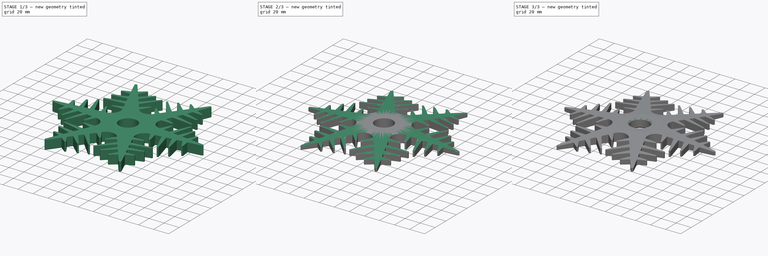
[diagram: build sequence overview — one tinted view per stage of 3, left to right]
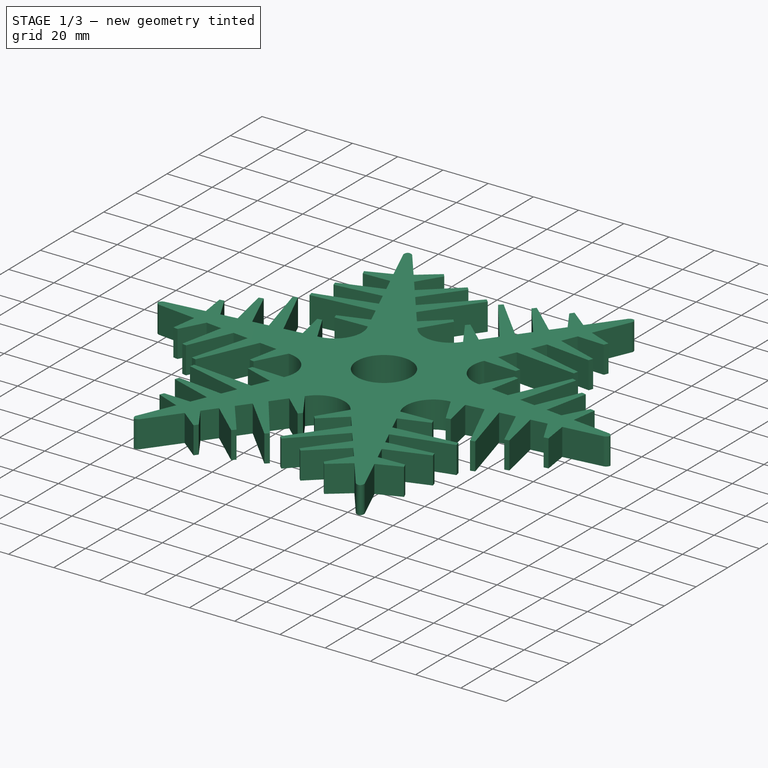
[diagram: stage 1 of 3 — iso view after this stage's code; geometry added in this stage tinted green]
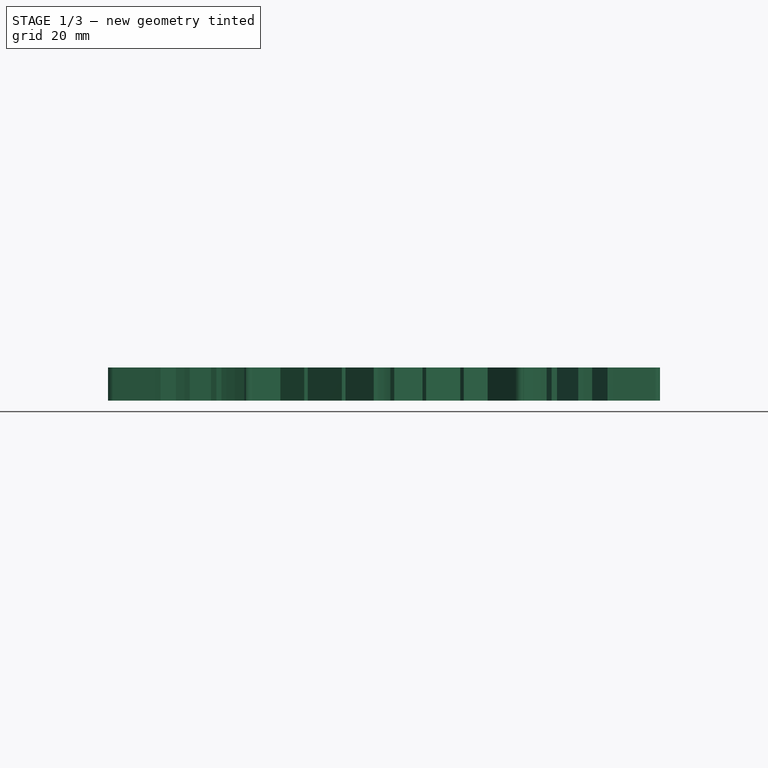
[diagram: stage 1 of 3 — front view after this stage's code; geometry added in this stage tinted green]
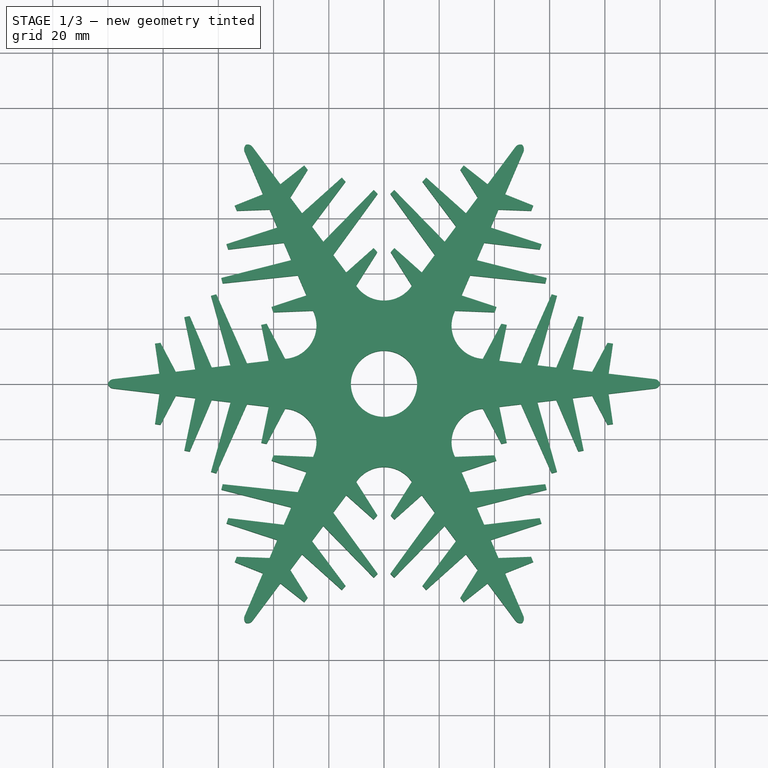
[diagram: stage 1 of 3 — top view after this stage's code; geometry added in this stage tinted green]
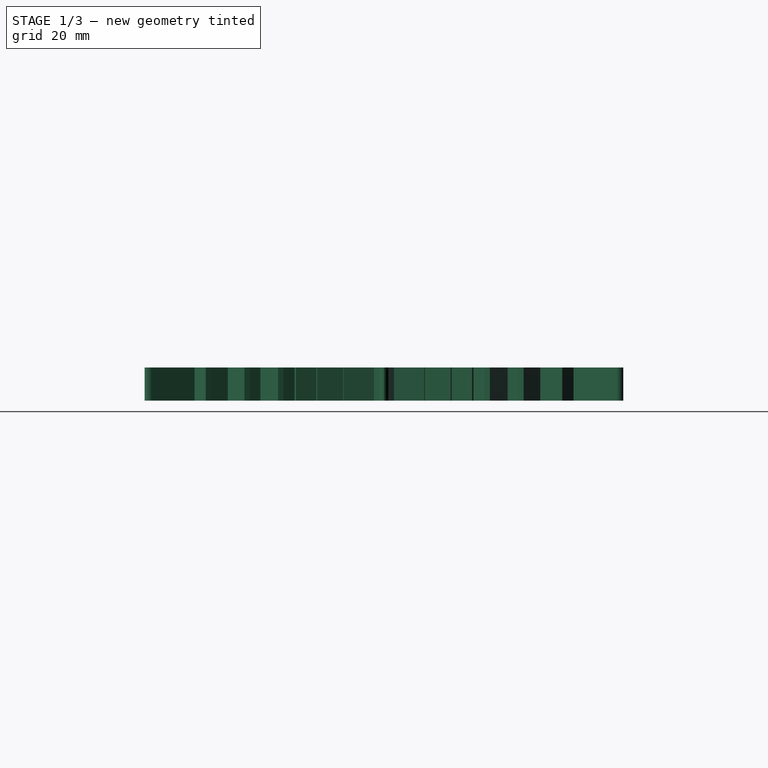
[diagram: stage 1 of 3 — right view after this stage's code; geometry added in this stage tinted green]
FCSTD DOCUMENT  (FreeCAD 0.17R13541 (Git))
Label: SkiBaskets3
License: All rights reserved
LicenseURL: http://en.wikipedia.org/wiki/All_rights_reserved
objects: Sketcher::SketchObject×2, PartDesign::Chamfer×2, PartDesign::Pad×1, PartDesign::Mirrored×1, PartDesign::PolarPattern×1, PartDesign::MultiTransform×1, PartDesign::Groove×1, PartDesign::Body×1
note: 12 computed .brp shape members not serialized (recipe doc carries the construction recipe); baked Part::Feature solids carry a one-line shape summary decoded from their .brp

FEATURE [Sketcher::SketchObject] Sketch
  MapMode = 5
  Support = -> [XY_Plane]
  sketch-geometry (26):
    g0: LineSegment [constr] StartX=0 StartY=0 StartZ=0 EndX=60.6218 EndY=35 EndZ=0
    g1: LineSegment [constr] StartX=60.6218 StartY=35 StartZ=0 EndX=100 EndY=0 EndZ=0
    g2: LineSegment StartX=42.4993 StartY=21.7373 StartZ=0 EndX=44.4578 EndY=21.3319 EndZ=0
    g3: LineSegment StartX=44.4578 StartY=21.3319 StartZ=0 EndX=41.7642 EndY=8.31776 EndZ=0
    g4: LineSegment StartX=41.7642 StartY=8.31776 StartZ=0 EndX=49.6196 EndY=7.39005 EndZ=0
    g5: LineSegment StartX=49.6196 StartY=7.39005 StartZ=0 EndX=60.7407 EndY=32.4098 EndZ=0
    g6: LineSegment StartX=60.7407 StartY=32.4098 StartZ=0 EndX=62.6659 EndY=31.8679 EndZ=0
    g7: LineSegment StartX=62.6659 StartY=31.8679 StartZ=0 EndX=55.5782 EndY=6.68634 EndZ=0
    g8: LineSegment StartX=55.5782 StartY=6.68634 StartZ=0 EndX=62.3909 EndY=5.88177 EndZ=0
    g9: LineSegment StartX=62.3909 StartY=5.88177 StartZ=0 EndX=70.3733 EndY=24.5356 EndZ=0
    g10: LineSegment StartX=70.3733 StartY=24.5356 StartZ=0 EndX=72.3306 EndY=24.1243 EndZ=0
    g11: LineSegment StartX=72.3306 StartY=24.1243 StartZ=0 EndX=68.3495 EndY=5.17806 EndZ=0
    g12: LineSegment StartX=68.3495 StartY=5.17806 StartZ=0 EndX=75.4093 EndY=4.3443 EndZ=0
    g13: LineSegment StartX=75.4093 StartY=4.3443 StartZ=0 EndX=80.9633 EndY=14.8235 EndZ=0
    g14: LineSegment StartX=80.9633 StartY=14.8235 StartZ=0 EndX=82.9428 EndY=14.5374 EndZ=0
    g15: LineSegment StartX=82.9428 StartY=14.5374 StartZ=0 EndX=81.3679 EndY=3.64059 EndZ=0
    g16: LineSegment StartX=81.3679 StartY=3.64059 StartZ=0 EndX=98.1314 EndY=1.66083 EndZ=0
    g17: LineSegment StartX=100 StartY=0 StartZ=0 EndX=12 EndY=0 EndZ=0
    g18: LineSegment [constr] StartX=19.0526 StartY=11 StartZ=0 EndX=98.1314 EndY=1.66083 EndZ=0
    g19: ArcOfCircle CenterX=0 CenterY=0 CenterZ=0 NormalX=0 NormalY=0 NormalZ=1 AngleXU=0 Radius=12 StartAngle=0 EndAngle=1.5708
    g20: ArcOfCircle CenterX=0 CenterY=0 CenterZ=0 NormalX=0 NormalY=0 NormalZ=1 AngleXU=0 Radius=22 StartAngle=0.523599 EndAngle=1.5708
    g21: LineSegment StartX=0 StartY=12 StartZ=0 EndX=0 EndY=22 EndZ=0
    g22: LineSegment StartX=35.8056 StartY=9.02147 StartZ=0 EndX=42.4993 EndY=21.7373 EndZ=0
    g23: LineSegment StartX=19.0526 StartY=11 StartZ=0 EndX=26.0933 EndY=15.065 EndZ=0
    g24: ArcOfCircle CenterX=36.6069 CenterY=21.135 CenterZ=0 NormalX=0 NormalY=0 NormalZ=1 AngleXU=0 Radius=12.14 StartAngle=3.66519 EndAngle=4.64634
    g25: ArcOfCircle CenterX=97.8711 CenterY=-0.513639 CenterZ=0 NormalX=0 NormalY=0 NormalZ=1 AngleXU=0 Radius=2.19 StartAngle=0.236744 EndAngle=1.45165
  constraints (80):
    c: Coincident(g0,g-1)
    c: DistanceX(g-1,g1) = 100
    c: Angle(g-1,g0) = 0.523599
    c: Coincident(g1,g0)
    c: Distance(g0) = 70
    c: Coincident(g3,g2)
    c: Coincident(g4,g3)
    c: Coincident(g5,g4)
    c: Coincident(g6,g5)
    c: Coincident(g7,g6)
    c: Coincident(g8,g7)
    c: Coincident(g10,g9)
    c: Coincident(g11,g10)
    c: Coincident(g12,g11)
    c: Coincident(g13,g12)
    c: Coincident(g14,g13)
    c: Coincident(g15,g14)
    c: Coincident(g16,g15)
    c: Coincident(g18,g16)
    c: PointOnObject(g16,g1)
    c: PointOnObject(g15,g18)
    c: PointOnObject(g12,g18)
    c: PointOnObject(g11,g18)
    c: PointOnObject(g8,g18)
    c: Coincident(g9,g8)
    c: PointOnObject(g7,g18)
    c: PointOnObject(g4,g18)
    c: PointOnObject(g3,g18)
    c: PointOnObject(g22,g18)
    c: PointOnObject(g20,g18)
    c: Coincident(g1,g17)
    c: Horizontal(g17)
    c: PointOnObject(g1,g-1)
    c: Coincident(g19,g-1)
    c: PointOnObject(g19,g-2)
    c: PointOnObject(g19,g-1)
    c: Coincident(g20,g-1)
    c: PointOnObject(g20,g-2)
    c: Coincident(g21,g19)
    c: Coincident(g21,g20)
    c: Radius(g19) = 12
    c: Distance(g21) = 10
    c: Distance(g14) = 2
    c: Perpendicular(g15,g14)
    c: Perpendicular(g10,g11)
    c: Distance(g10) = 2
    c: Perpendicular(g6,g7)
    c: Distance(g6) = 2
    c: Perpendicular(g3,g2)
    c: Distance(g2) = 2
    c: Distance(g22,g3) = 6
    c: Distance(g4,g7) = 6
    c: Distance(g8,g11) = 6
    c: Distance(g12,g15) = 6
    c: PointOnObject(g20,g0)
    c: Coincident(g22,g2)
    c: Coincident(g17,g19)
    c: Distance(g22) = 14.37
    c: Distance(g3) = 13.29
    c: Distance(g5) = 27.38
    c: Distance(g7) = 26.16
    c: Distance(g9) = 20.29
    c: Distance(g11) = 19.36
    c: Distance(g13) = 11.86
    c: Distance(g15) = 11.01
    c: Distance(g16) = 16.88
    c: PointOnObject(g18,g0)
    c: Distance(g4) = 7.91
    c: Distance(g8) = 6.86
    c: PointOnObject(g23,g0)
    c: PointOnObject(g24,g0)
    c: Coincident(g24,g23)
    c: Coincident(g24,g22)
    c: Coincident(g23,g18)
    c: Distance(g23) = 8.13
    c: Radius(g24) = 12.14
    c: Distance(g16,g1) = 2.5
    c: Coincident(g25,g1)
    c: Coincident(g25,g16)
    c: Radius(g25) = 2.19
FEATURE [Sketcher::SketchObject] Sketch001
  MapMode = 5
  Placement = pos=(0,0,0) rot=(1,0,0;1.5708rad)
  sketch-geometry (3):
    g0: LineSegment StartX=23 StartY=12 StartZ=0 EndX=103 EndY=12 EndZ=0
    g1: LineSegment StartX=103 StartY=12 StartZ=0 EndX=103 EndY=4 EndZ=0
    g2: LineSegment StartX=103 StartY=4 StartZ=0 EndX=23 EndY=12 EndZ=0
  constraints (9):
    c: Horizontal(g0)
    c: Coincident(g1,g0)
    c: Vertical(g1)
    c: Coincident(g2,g1)
    c: Coincident(g2,g0)
    c: DistanceX(g0) = 23
    c: DistanceY(g0) = 12
    c: Distance(g0) = 80
    c: Distance(g1) = 8
FEATURE [PartDesign::Pad] Pad
  Length = 12
  Length2 = 100
  Profile = -> Sketch
  Type = 0
FEATURE [PartDesign::Mirrored] Mirrored
  MirrorPlane = -> Sketch [H_Axis]
FEATURE [PartDesign::PolarPattern] PolarPattern
  Angle = 360
  Axis = -> Sketch [N_Axis]
  Occurrences = 6
FEATURE [PartDesign::MultiTransform] MultiTransform
  BaseFeature = -> Pad
  Originals = -> [Pad]
  Transformations = -> [Mirrored,PolarPattern]
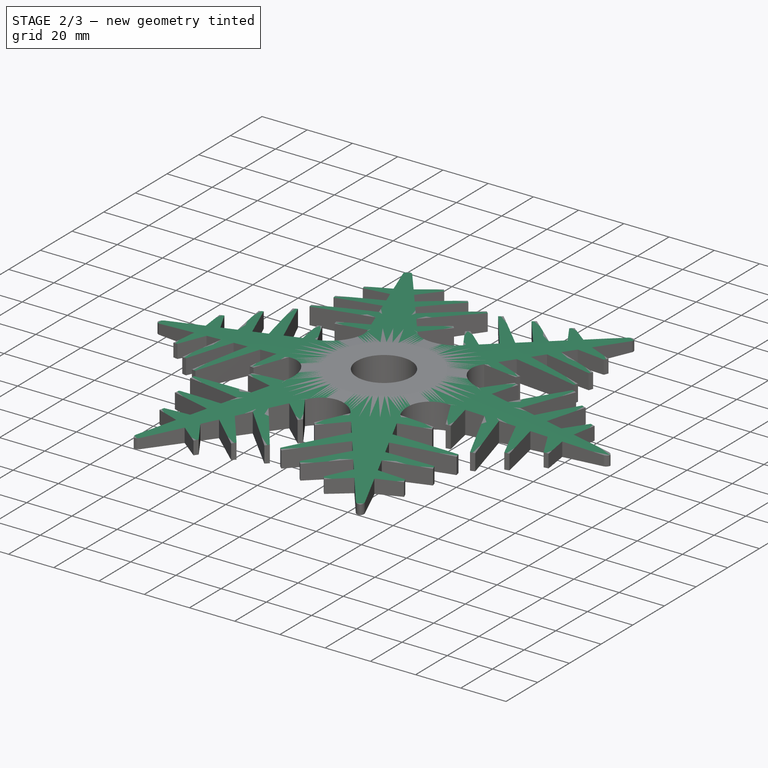
[diagram: stage 2 of 3 — iso view after this stage's code; geometry added in this stage tinted green]
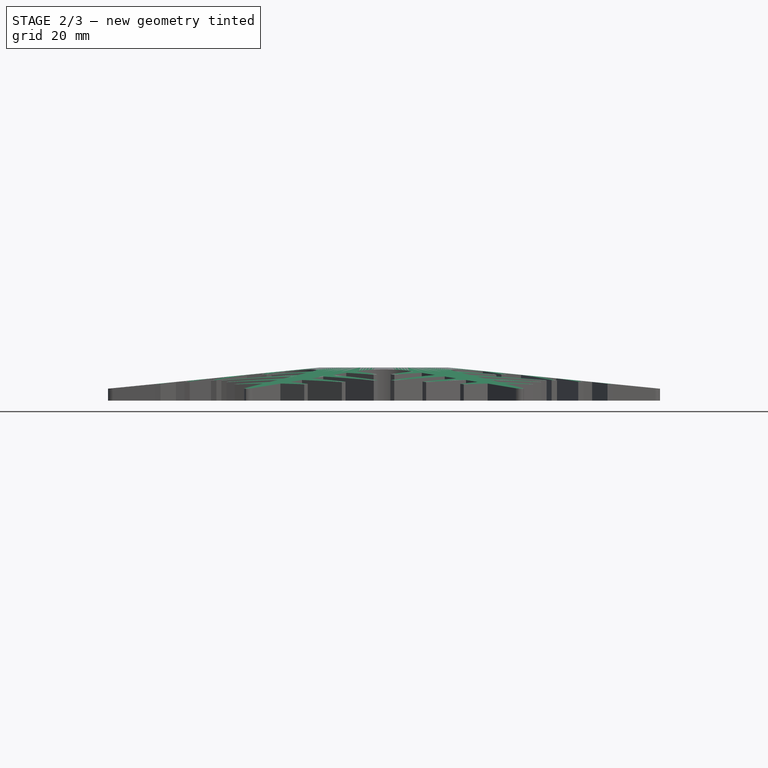
[diagram: stage 2 of 3 — front view after this stage's code; geometry added in this stage tinted green]
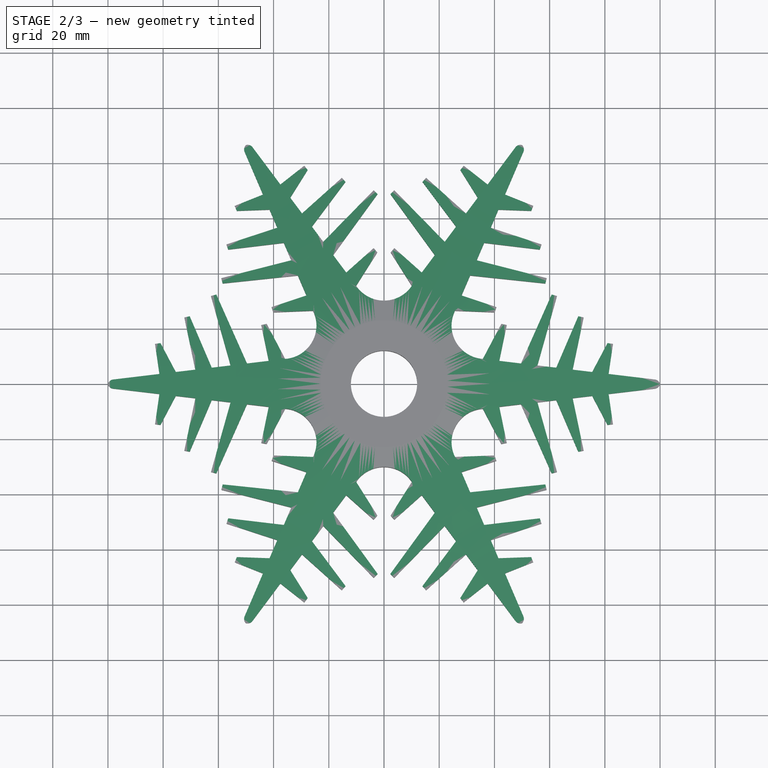
[diagram: stage 2 of 3 — top view after this stage's code; geometry added in this stage tinted green]
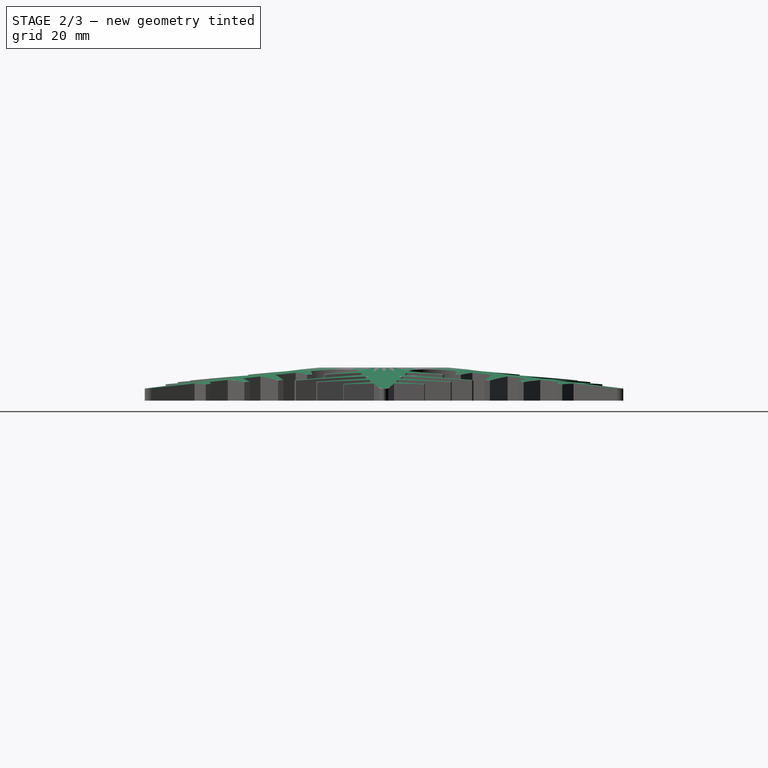
[diagram: stage 2 of 3 — right view after this stage's code; geometry added in this stage tinted green]
FEATURE [PartDesign::Groove] Groove
  Angle = 360
  Axis = (0,0,1)
  Base = (0,0,0)
  BaseFeature = -> MultiTransform
  Profile = -> Sketch001
  ReferenceAxis = -> Z_Axis
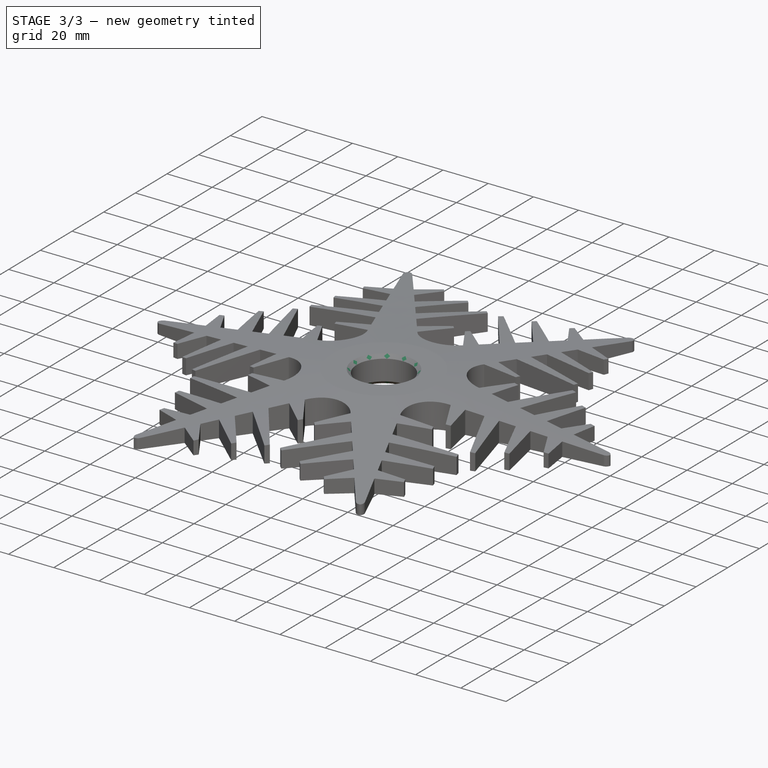
[diagram: stage 3 of 3 — iso view after this stage's code; geometry added in this stage tinted green]
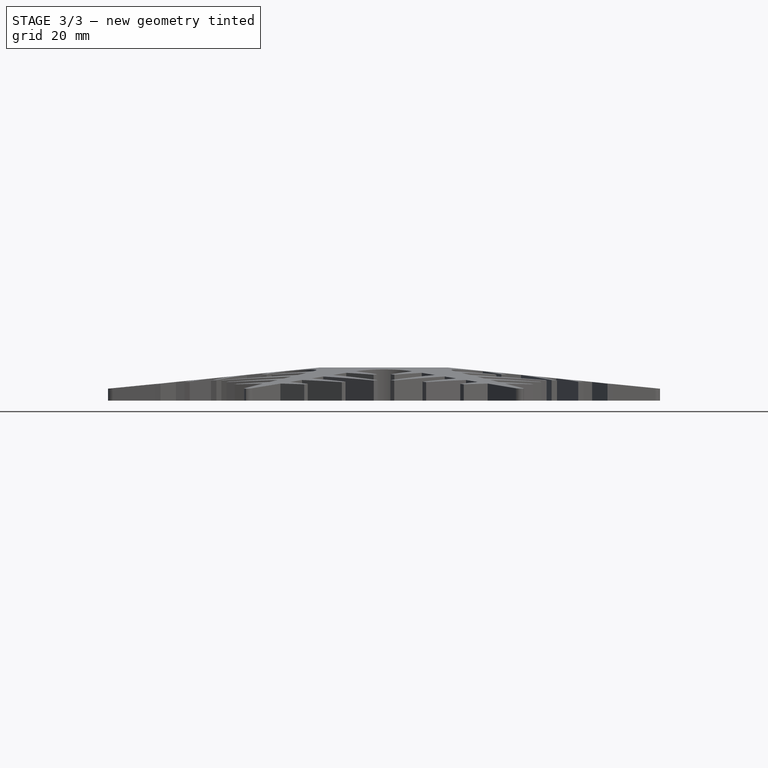
[diagram: stage 3 of 3 — front view after this stage's code; geometry added in this stage tinted green]
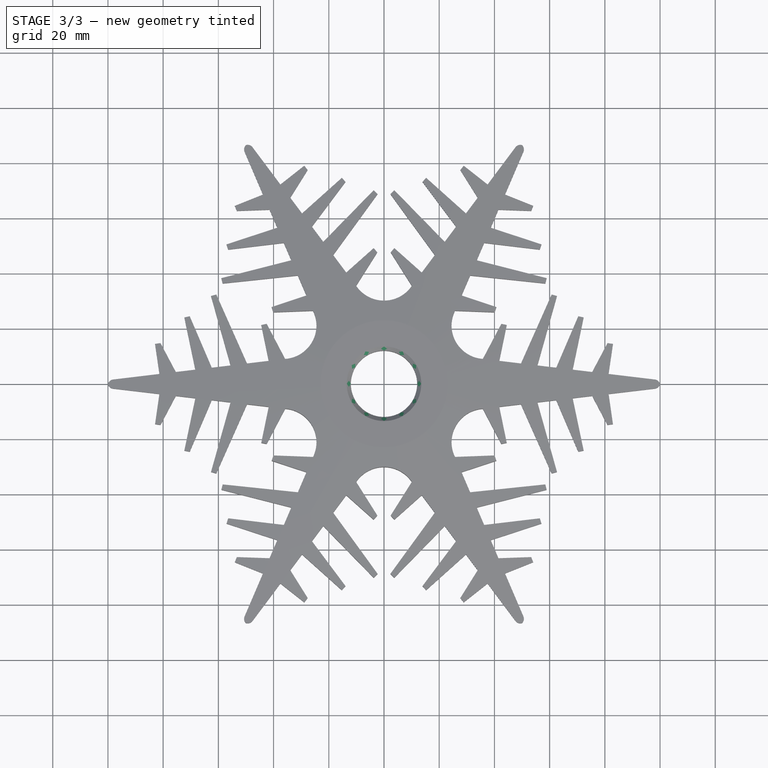
[diagram: stage 3 of 3 — top view after this stage's code; geometry added in this stage tinted green]
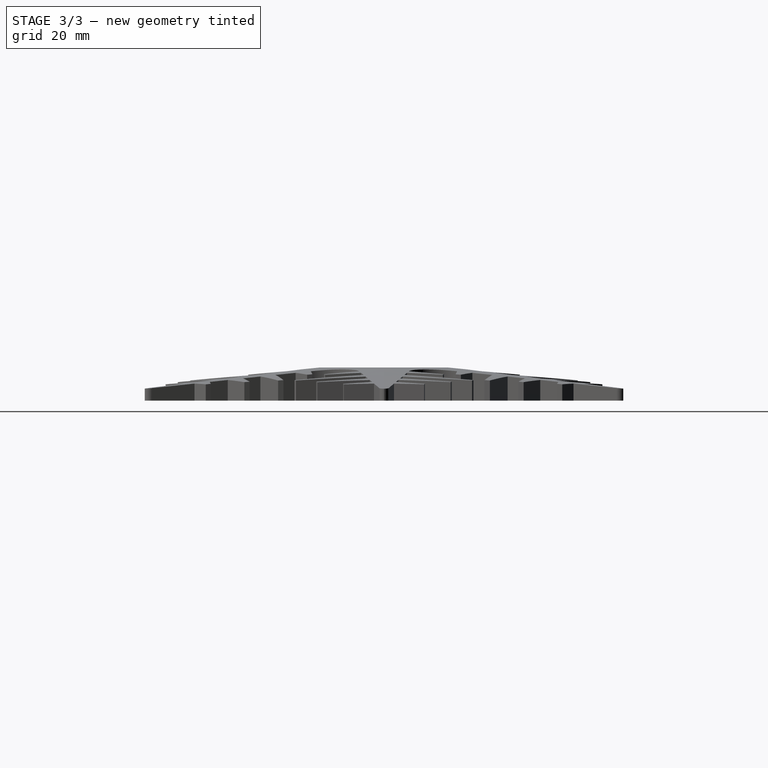
[diagram: stage 3 of 3 — right view after this stage's code; geometry added in this stage tinted green]
FEATURE [PartDesign::Chamfer] Chamfer
  Base = -> Groove [Edge731,Edge729,Edge727,Edge725,Edge723,Edge699,Edge742,Edge740,Edge738,Edge737,Edge735,Edge733]
  BaseFeature = -> Groove
  Size = 1.5
FEATURE [PartDesign::Chamfer] Chamfer001
  Base = -> Chamfer [Edge16,Edge3,Edge7,Edge19,Edge56,Edge152,Edge456,Edge775,Edge772,Edge452,Edge149,Edge53]
  BaseFeature = -> Chamfer
  Size = 1.5
FEATURE [PartDesign::Body] Body
  Group = -> [Sketch,Pad,MultiTransform,Sketch001,Mirrored,PolarPattern,Groove,Chamfer,Chamfer001]
  Origin = -> Origin
  Tip = -> Chamfer001
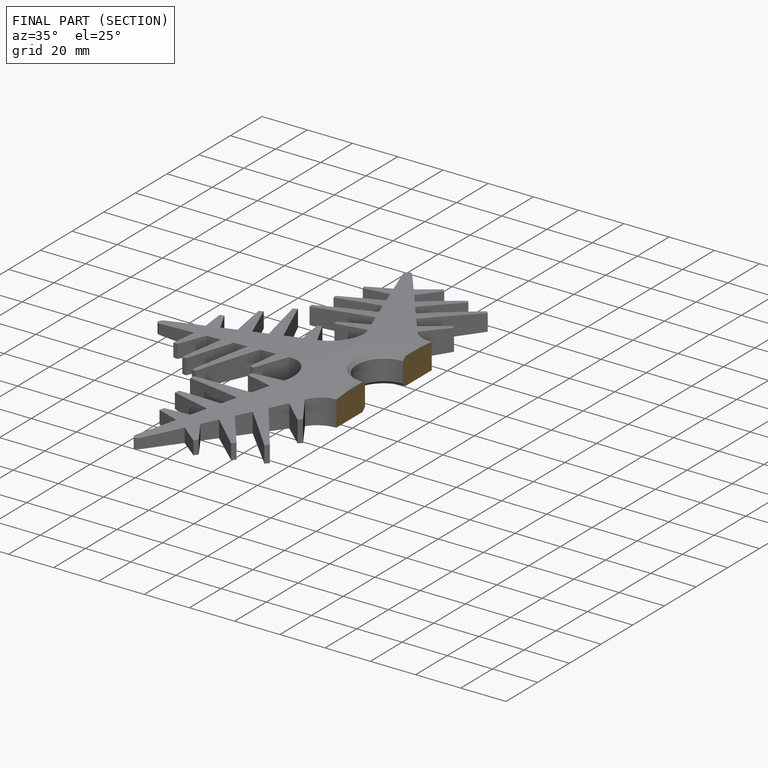
[diagram: finished part — half-section view (interior)]
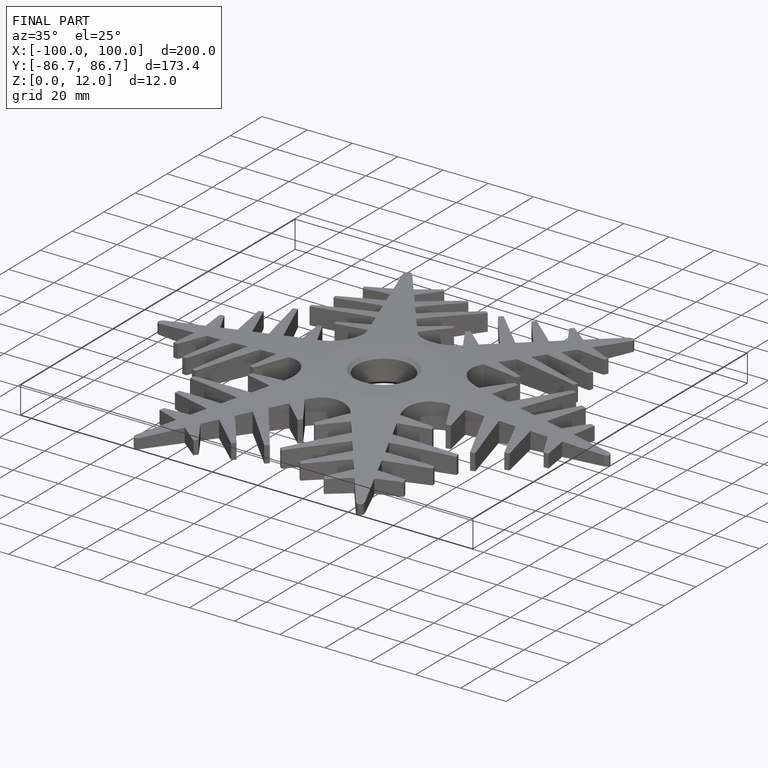
[diagram: finished part — iso view with bounding-box wireframe]
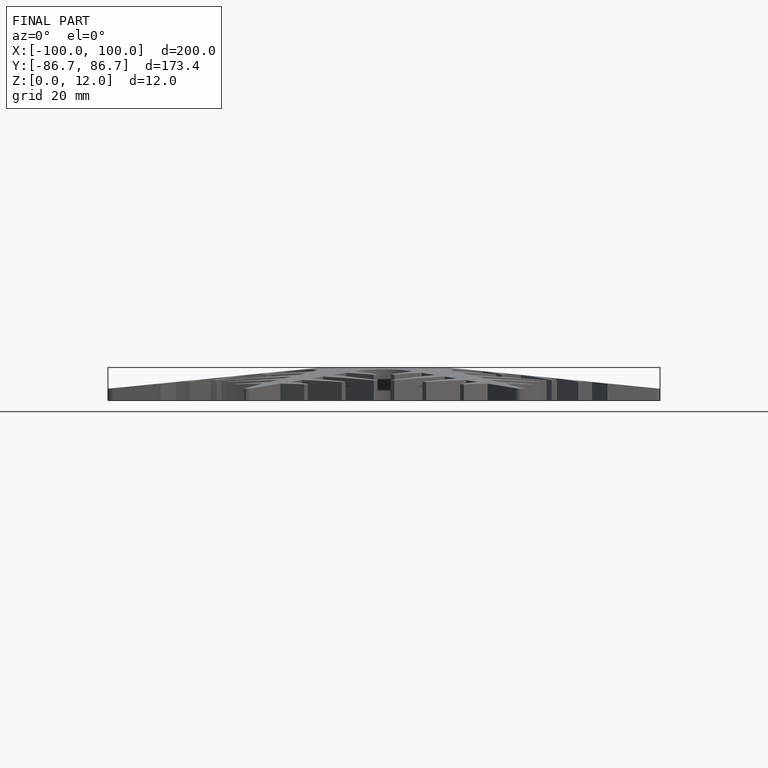
[diagram: finished part — front view with bounding-box wireframe]
